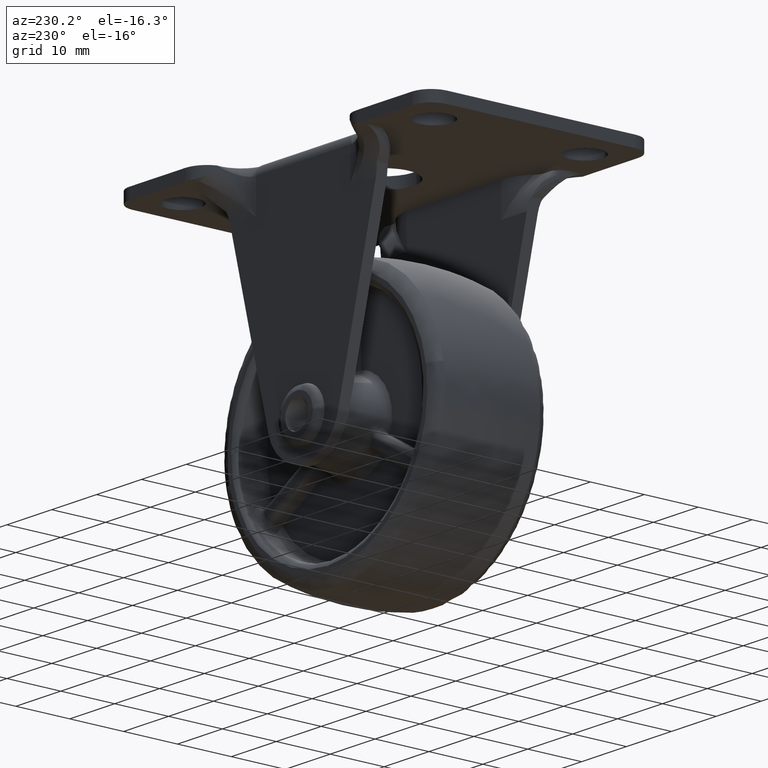
[diagram: clean part render]
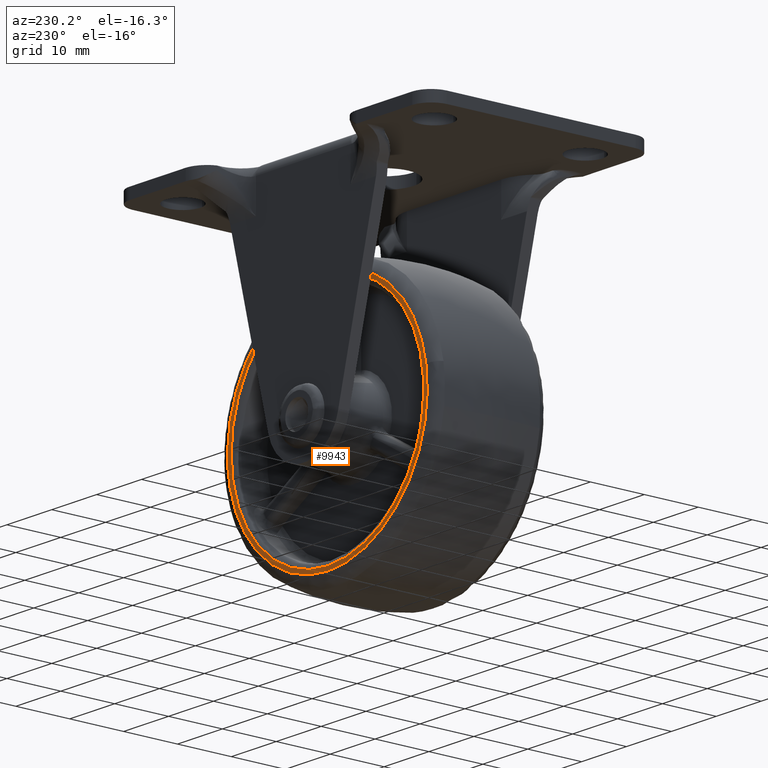
[diagram: same view with one face highlighted and labeled with its STEP entity id]
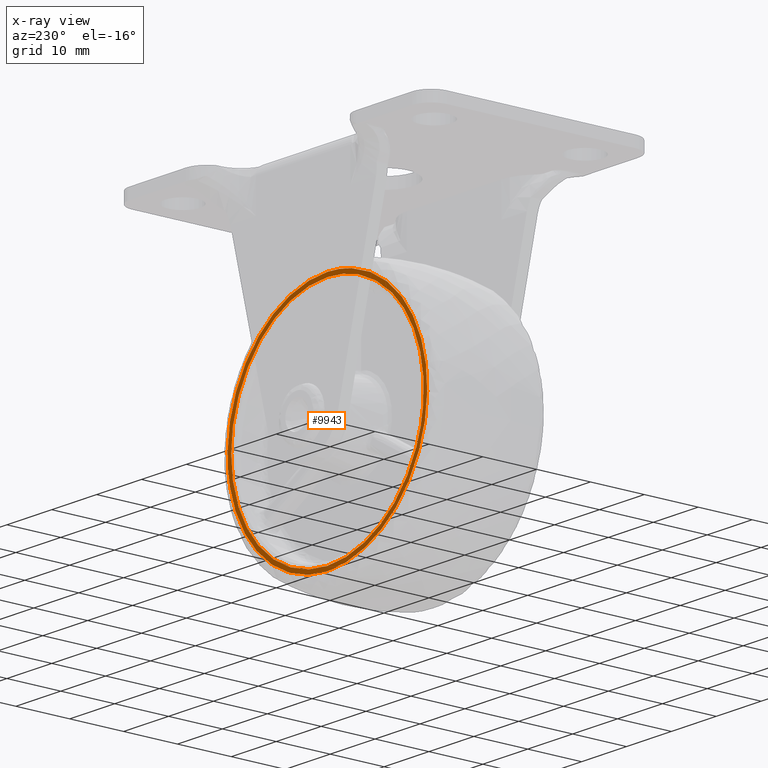
[diagram: x-ray of the same camera — body ghosted, the highlighted face saturated]
A machine part, auxiliary view. The second image highlights one B-rep face of the part: STEP entity #9943.
The next image is the same camera in x-ray: the body ghosted, the highlighted face saturated — about 0% of this face is hidden behind the body in this view.
In plain terms, the highlighted face is a freeform B-spline surface patch.
Its self-contained STEP definition (entity closure, byte-faithful):
#2901=CARTESIAN_POINT('',(-42.945278738289879,10.499999999999940,-34.882721427607883));
#2902=VERTEX_POINT('',#2901);
#2916=CARTESIAN_POINT('',(-21.0,10.500000000000000,-60.741402000000001));
#2917=VERTEX_POINT('',#2916);
#2918=CARTESIAN_POINT('',(-21.0,10.500000000000000,-60.741402000000001));
#2919=CARTESIAN_POINT('',(-43.241402000000001,10.500000000000002,-60.741402000000015));
#2920=CARTESIAN_POINT('',(-43.241402000000001,10.500000000000000,-38.500000000000000));
#2921=CARTESIAN_POINT('',(-43.241402000000001,10.500000000000000,-36.679239863100058));
#2922=CARTESIAN_POINT('',(-42.945278738289879,10.499999999999943,-34.882721427607869));
#2930=(BOUNDED_CURVE()B_SPLINE_CURVE(2,(#2918,#2919,#2920,#2921,#2922),.UNSPECIFIED.,.F.,.U.)B_SPLINE_CURVE_WITH_KNOTS((3,2,3),(0.500000000000000,0.750000000000000,0.777993891204353),.UNSPECIFIED.)CURVE()GEOMETRIC_REPRESENTATION_ITEM()RATIONAL_B_SPLINE_CURVE((1.0,0.707106781186548,1.0,0.967203116392173,0.941751131916821))REPRESENTATION_ITEM(''));
#2931=EDGE_CURVE('',#2917,#2902,#2930,.T.);
#2933=CARTESIAN_POINT('',(0.702477825028461,10.499999999999940,-43.366458612889460));
#2934=VERTEX_POINT('',#2933);
#2935=CARTESIAN_POINT('',(0.702477825028461,10.499999999999943,-43.366458612889460));
#2936=CARTESIAN_POINT('',(-3.193595411683575,10.500000000000000,-60.741402000000001));
#2937=CARTESIAN_POINT('',(-21.0,10.500000000000000,-60.741402000000001));
#2945=(BOUNDED_CURVE()B_SPLINE_CURVE(2,(#2935,#2936,#2937),.UNSPECIFIED.,.F.,.U.)B_SPLINE_CURVE_WITH_KNOTS((3,3),(0.287436176726317,0.500000000000000),.UNSPECIFIED.)CURVE()GEOMETRIC_REPRESENTATION_ITEM()RATIONAL_B_SPLINE_CURVE((0.925416950443704,0.750965990392309,1.0))REPRESENTATION_ITEM(''));
#2946=EDGE_CURVE('',#2934,#2917,#2945,.T.);
#3011=CARTESIAN_POINT('',(-21.0,10.500000000000000,-16.258597999999999));
#3012=VERTEX_POINT('',#3011);
#3013=CARTESIAN_POINT('',(-21.0,10.500000000000000,-16.258597999999999));
#3014=CARTESIAN_POINT('',(1.241401999999996,10.500000000000002,-16.258597999999999));
#3015=CARTESIAN_POINT('',(1.241401999999999,10.500000000000000,-38.500000000000000));
#3016=CARTESIAN_POINT('',(1.241401999999999,10.499999999999995,-40.963070232939828));
#3017=CARTESIAN_POINT('',(0.702477825028461,10.499999999999943,-43.366458612889460));
#3025=(BOUNDED_CURVE()B_SPLINE_CURVE(2,(#3013,#3014,#3015,#3016,#3017),.UNSPECIFIED.,.F.,.U.)B_SPLINE_CURVE_WITH_KNOTS((3,2,3),(0.0,0.250000000000000,0.287436176726317),.UNSPECIFIED.)CURVE()GEOMETRIC_REPRESENTATION_ITEM()RATIONAL_B_SPLINE_CURVE((1.0,0.707106781186548,1.0,0.956140790794239,0.925416950443704))REPRESENTATION_ITEM(''));
#3026=EDGE_CURVE('',#3012,#2934,#3025,.T.);
#3028=CARTESIAN_POINT('',(-42.945278738289886,10.499999999999943,-34.882721427607876));
#3029=CARTESIAN_POINT('',(-39.875431982844837,10.500000000000000,-16.258598000000003));
#3030=CARTESIAN_POINT('',(-21.0,10.500000000000000,-16.258597999999999));
#3038=(BOUNDED_CURVE()B_SPLINE_CURVE(2,(#3028,#3029,#3030),.UNSPECIFIED.,.F.,.U.)B_SPLINE_CURVE_WITH_KNOTS((3,3),(0.777993891204353,1.0),.UNSPECIFIED.)CURVE()GEOMETRIC_REPRESENTATION_ITEM()RATIONAL_B_SPLINE_CURVE((0.941751131916823,0.739903664794373,1.0))REPRESENTATION_ITEM(''));
#3039=EDGE_CURVE('',#2902,#3012,#3038,.T.);
#3087=CARTESIAN_POINT('',(-42.306531672010642,10.500000000000000,-40.976707372699387));
#3088=VERTEX_POINT('',#3087);
#3089=CARTESIAN_POINT('',(-21.0,10.500000000000000,-17.050003000000000));
#3090=VERTEX_POINT('',#3089);
#3091=CARTESIAN_POINT('',(-42.306531672010642,10.500000000000002,-40.976707372699394));
#3092=CARTESIAN_POINT('',(-42.449997000000010,10.500000000000002,-39.742508860397585));
#3093=CARTESIAN_POINT('',(-42.449997000000003,10.500000000000000,-38.500000000000000));
#3094=CARTESIAN_POINT('',(-42.449997000000003,10.500000000000000,-17.050003000000004));
#3095=CARTESIAN_POINT('',(-21.0,10.500000000000000,-17.050003000000000));
#3103=(BOUNDED_CURVE()B_SPLINE_CURVE(2,(#3091,#3092,#3093,#3094,#3095),.UNSPECIFIED.,.F.,.U.)B_SPLINE_CURVE_WITH_KNOTS((3,2,3),(0.729999999999597,0.750000000000000,1.0),.UNSPECIFIED.)CURVE()GEOMETRIC_REPRESENTATION_ITEM()RATIONAL_B_SPLINE_CURVE((0.956886118189867,0.976568542494452,1.0,0.707106781186547,1.0))REPRESENTATION_ITEM(''));
#3104=EDGE_CURVE('',#3088,#3090,#3103,.T.);
#3106=CARTESIAN_POINT('',(0.449996996225115,10.500000000000000,-38.499999999999993));
#3107=VERTEX_POINT('',#3106);
#3108=CARTESIAN_POINT('',(-21.0,10.500000000000000,-17.050003000000000));
#3109=CARTESIAN_POINT('',(0.449996999999960,10.500000000000000,-17.050002999999997));
#3110=CARTESIAN_POINT('',(0.449996996225115,10.499999999999996,-38.499999999999986));
#3118=(BOUNDED_CURVE()B_SPLINE_CURVE(2,(#3108,#3109,#3110),.UNSPECIFIED.,.F.,.U.)B_SPLINE_CURVE_WITH_KNOTS((3,3),(0.0,0.250000000000000),.UNSPECIFIED.)CURVE()GEOMETRIC_REPRESENTATION_ITEM()RATIONAL_B_SPLINE_CURVE((1.0,0.707106781186548,0.999999999999999))REPRESENTATION_ITEM(''));
#3119=EDGE_CURVE('',#3090,#3107,#3118,.T.);
#3177=CARTESIAN_POINT('',(-21.0,10.500000000000000,-59.949997000000003));
#3178=VERTEX_POINT('',#3177);
#3179=CARTESIAN_POINT('',(-21.0,10.500000000000000,-59.949997000000003));
#3180=CARTESIAN_POINT('',(-40.101044311217052,10.500000000000000,-59.949996999999996));
#3181=CARTESIAN_POINT('',(-42.306531672010642,10.499999999999998,-40.976707372699394));
#3189=(BOUNDED_CURVE()B_SPLINE_CURVE(2,(#3179,#3180,#3181),.UNSPECIFIED.,.F.,.U.)B_SPLINE_CURVE_WITH_KNOTS((3,3),(0.500000000000000,0.729999999999597),.UNSPECIFIED.)CURVE()GEOMETRIC_REPRESENTATION_ITEM()RATIONAL_B_SPLINE_CURVE((1.0,0.730538238692096,0.956886118189867))REPRESENTATION_ITEM(''));
#3190=EDGE_CURVE('',#3178,#3088,#3189,.T.);
#3196=CARTESIAN_POINT('',(0.449996996225115,10.500000000000011,-38.500000000000000));
#3197=CARTESIAN_POINT('',(0.449997000000024,10.499999999999998,-59.949996999999996));
#3198=CARTESIAN_POINT('',(-21.0,10.500000000000000,-59.949997000000003));
#3206=(BOUNDED_CURVE()B_SPLINE_CURVE(2,(#3196,#3197,#3198),.UNSPECIFIED.,.F.,.U.)B_SPLINE_CURVE_WITH_KNOTS((3,3),(0.250000000000000,0.500000000000000),.UNSPECIFIED.)CURVE()GEOMETRIC_REPRESENTATION_ITEM()RATIONAL_B_SPLINE_CURVE((1.0,0.707106781186547,1.0))REPRESENTATION_ITEM(''));
#3207=EDGE_CURVE('',#3107,#3178,#3206,.T.);
#9926=CARTESIAN_POINT('',(-45.461954901292700,10.500000000000000,-62.963317973583692));
#9927=CARTESIAN_POINT('',(-45.461954901292700,10.500000000000000,-14.036680833294531));
#9928=CARTESIAN_POINT('',(3.459367819080182,10.500000000000000,-62.963317973583699));
#9929=CARTESIAN_POINT('',(3.459367819080182,10.500000000000000,-14.036680833294531));
#9930=B_SPLINE_SURFACE_WITH_KNOTS('',1,1,((#9926,#9928),(#9927,#9929)),.UNSPECIFIED.,.F.,.F.,.U.,(2,2),(2,2),(0.0,48.926637140289174),(0.0,48.921322720372892),.UNSPECIFIED.);
#9931=ORIENTED_EDGE('',*,*,#3026,.T.);
#9932=ORIENTED_EDGE('',*,*,#2946,.T.);
#9933=ORIENTED_EDGE('',*,*,#2931,.T.);
#9934=ORIENTED_EDGE('',*,*,#3039,.T.);
#9935=EDGE_LOOP('',(#9931,#9932,#9933,#9934));
#9936=FACE_OUTER_BOUND('',#9935,.T.);
#9937=ORIENTED_EDGE('',*,*,#3119,.F.);
#9938=ORIENTED_EDGE('',*,*,#3104,.F.);
#9939=ORIENTED_EDGE('',*,*,#3190,.F.);
#9940=ORIENTED_EDGE('',*,*,#3207,.F.);
#9941=EDGE_LOOP('',(#9937,#9938,#9939,#9940));
#9942=FACE_BOUND('',#9941,.T.);
#9943=ADVANCED_FACE('',(#9936,#9942),#9930,.T.);